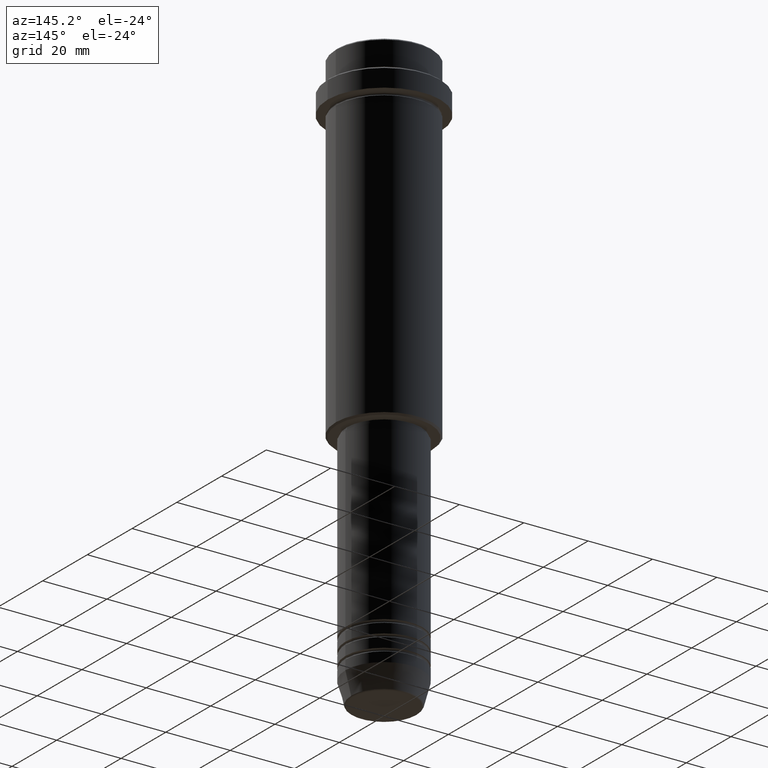
[diagram: clean part render]
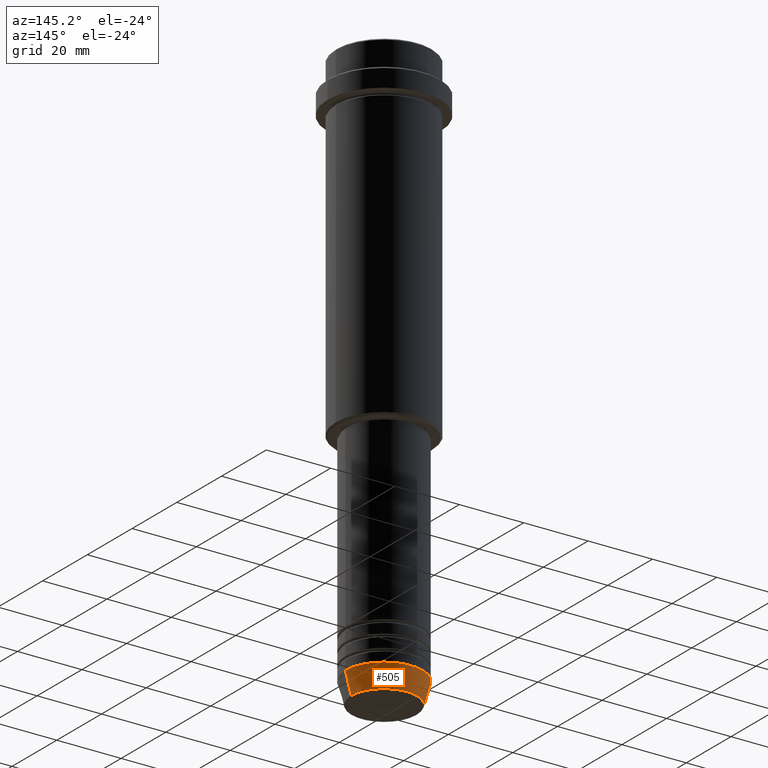
[diagram: same view with one face highlighted and labeled with its STEP entity id]
A machine part, auxiliary view. The second image highlights one B-rep face of the part: STEP entity #505.
In plain terms, the highlighted conical surface has half-angle 15 deg.
Its self-contained STEP definition (entity closure, byte-faithful):
#19 = CONICAL_SURFACE ( 'NONE', #1364, 12.00000000000000000, 0.2617993877991500740 ) ;
#80 = DIRECTION ( 'NONE',  ( 1.000000000000000000, 0.000000000000000000, 0.000000000000000000 ) ) ;
#162 = DIRECTION ( 'NONE',  ( -0.000000000000000000, -0.000000000000000000, 1.000000000000000000 ) ) ;
#170 = CARTESIAN_POINT ( 'NONE',  ( -12.00000000000000000, 1.469576158976823947E-15, -173.0000000000000284 ) ) ;
#194 = CARTESIAN_POINT ( 'NONE',  ( -12.00000000000000000, 1.469576158976823947E-15, -173.0000000000000284 ) ) ;
#268 = CARTESIAN_POINT ( 'NONE',  ( 0.000000000000000000, 0.000000000000000000, -173.0000000000000284 ) ) ;
#290 = FACE_OUTER_BOUND ( 'NONE', #304, .T. ) ;
#294 = CARTESIAN_POINT ( 'NONE',  ( 0.000000000000000000, 0.000000000000000000, -179.6294095225512706 ) ) ;
#299 = DIRECTION ( 'NONE',  ( -0.000000000000000000, -0.000000000000000000, 1.000000000000000000 ) ) ;
#300 = LINE ( 'NONE', #194, #1048 ) ;
#304 = EDGE_LOOP ( 'NONE', ( #1018, #941, #1369, #1038 ) ) ;
#306 = CIRCLE ( 'NONE', #1231, 12.00000000000000000 ) ;
#327 = LINE ( 'NONE', #764, #1071 ) ;
#385 = DIRECTION ( 'NONE',  ( 1.000000000000000000, 0.000000000000000000, 0.000000000000000000 ) ) ;
#437 = VERTEX_POINT ( 'NONE', #170 ) ;
#453 = VERTEX_POINT ( 'NONE', #683 ) ;
#505 = ADVANCED_FACE ( 'NONE', ( #290 ), #19, .T. ) ;
#567 = AXIS2_PLACEMENT_3D ( 'NONE', #294, #954, #385 ) ;
#572 = EDGE_CURVE ( 'NONE', #909, #1045, #908, .T. ) ;
#608 = DIRECTION ( 'NONE',  ( -0.2588190451025213501, 3.169619151431772337E-17, 0.9659258262890680902 ) ) ;
#683 = CARTESIAN_POINT ( 'NONE',  ( 12.00000000000000000, 0.000000000000000000, -173.0000000000000284 ) ) ;
#744 = EDGE_CURVE ( 'NONE', #909, #453, #327, .T. ) ;
#764 = CARTESIAN_POINT ( 'NONE',  ( 12.00000000000000000, 0.000000000000000000, -173.0000000000000284 ) ) ;
#873 = EDGE_CURVE ( 'NONE', #453, #437, #306, .T. ) ;
#908 = CIRCLE ( 'NONE', #567, 10.22365507213719660 ) ;
#909 = VERTEX_POINT ( 'NONE', #1156 ) ;
#941 = ORIENTED_EDGE ( 'NONE', *, *, #1408, .T. ) ;
#954 = DIRECTION ( 'NONE',  ( -0.000000000000000000, -0.000000000000000000, 1.000000000000000000 ) ) ;
#1018 = ORIENTED_EDGE ( 'NONE', *, *, #572, .T. ) ;
#1038 = ORIENTED_EDGE ( 'NONE', *, *, #744, .F. ) ;
#1045 = VERTEX_POINT ( 'NONE', #1068 ) ;
#1048 = VECTOR ( 'NONE', #608, 1000.000000000000000 ) ;
#1068 = CARTESIAN_POINT ( 'NONE',  ( -10.22365507213719837, 1.360806402472383336E-15, -179.6294095225512706 ) ) ;
#1071 = VECTOR ( 'NONE', #1212, 1000.000000000000000 ) ;
#1120 = DIRECTION ( 'NONE',  ( 1.000000000000000000, 0.000000000000000000, 0.000000000000000000 ) ) ;
#1156 = CARTESIAN_POINT ( 'NONE',  ( 10.22365507213719660, 0.000000000000000000, -179.6294095225512706 ) ) ;
#1212 = DIRECTION ( 'NONE',  ( 0.2588190451025213501, 0.000000000000000000, 0.9659258262890680902 ) ) ;
#1231 = AXIS2_PLACEMENT_3D ( 'NONE', #268, #162, #1120 ) ;
#1364 = AXIS2_PLACEMENT_3D ( 'NONE', #1381, #299, #80 ) ;
#1369 = ORIENTED_EDGE ( 'NONE', *, *, #873, .F. ) ;
#1381 = CARTESIAN_POINT ( 'NONE',  ( 0.000000000000000000, 0.000000000000000000, -173.0000000000000284 ) ) ;
#1408 = EDGE_CURVE ( 'NONE', #1045, #437, #300, .T. ) ;